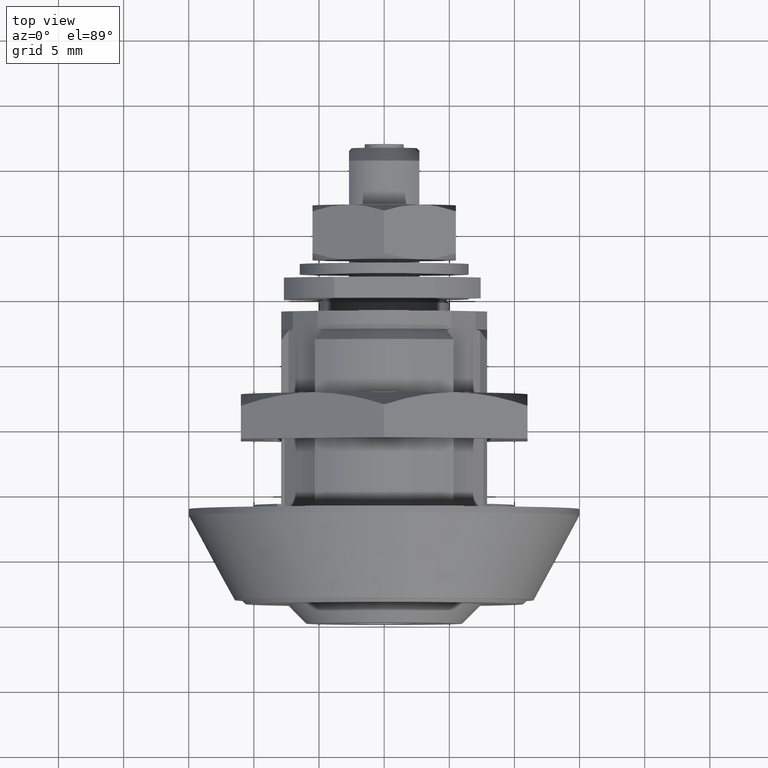
[diagram: clean part render]
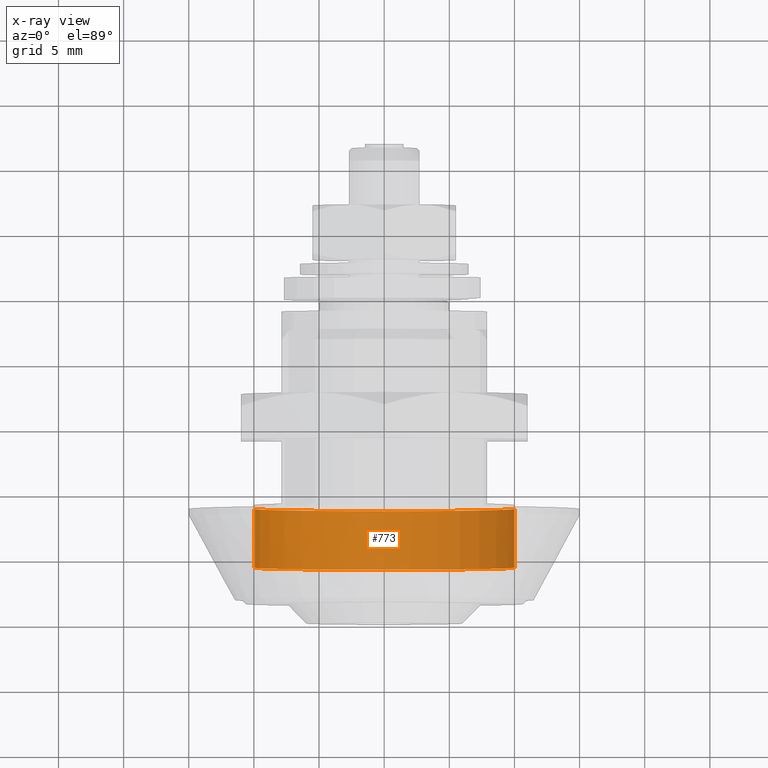
[diagram: x-ray — body ghosted, one internal face saturated and labeled with its STEP entity id]
A machine part, top view, then the same camera in x-ray: the body is ghosted and one INTERNAL B-rep face — a face not visible from any outside direction — is saturated and labeled: STEP entity #773.
In plain terms, the highlighted face is a freeform B-spline surface patch.
Its self-contained STEP definition (entity closure, byte-faithful):
#671=CARTESIAN_POINT('',(8.912500000000003,9.930095263636664,1.180342346567585));
#672=CARTESIAN_POINT('',(8.912500000000003,9.963876154486057,0.896147286379777));
#673=CARTESIAN_POINT('',(8.912500000000003,9.981347984218667,0.610485395348570));
#674=CARTESIAN_POINT('',(8.912500000000003,10.591833379567237,-9.370862588870097));
#675=CARTESIAN_POINT('',(8.912500000000003,0.610485395348570,-9.981347984218667));
#676=CARTESIAN_POINT('',(8.912500000000003,-9.370862588870097,-10.591833379567237));
#677=CARTESIAN_POINT('',(8.912500000000003,-9.981347984218667,-0.610485395348570));
#678=CARTESIAN_POINT('',(4.184687500000000,9.930095263636664,1.180342346567585));
#679=CARTESIAN_POINT('',(4.184687500000000,9.963876154486057,0.896147286379777));
#680=CARTESIAN_POINT('',(4.184687499999999,9.981347984218667,0.610485395348570));
#681=CARTESIAN_POINT('',(4.184687499999999,10.591833379567237,-9.370862588870097));
#682=CARTESIAN_POINT('',(4.184687499999999,0.610485395348570,-9.981347984218667));
#683=CARTESIAN_POINT('',(4.184687499999999,-9.370862588870097,-10.591833379567237));
#684=CARTESIAN_POINT('',(4.184687499999999,-9.981347984218667,-0.610485395348570));
#692=(BOUNDED_SURFACE()B_SPLINE_SURFACE(2,1,((#671,#678),(#672,#679),(#673,#680),(#674,#681),(#675,#682),(#676,#683),(#677,#684)),.UNSPECIFIED.,.F.,.F.,.U.)B_SPLINE_SURFACE_WITH_KNOTS((3,2,2,3),(2,2),(0.0,0.662741699796953,17.231284194720750,33.799826689644547),(0.0,4.727812500000004),.UNSPECIFIED.)GEOMETRIC_REPRESENTATION_ITEM()RATIONAL_B_SPLINE_SURFACE(((0.977505800795127,0.977505800795127),(0.988284271247462,0.988284271247462),(1.0,1.0),(0.707106781186548,0.707106781186548),(1.0,1.0),(0.707106781186548,0.707106781186548),(1.0,1.0)))REPRESENTATION_ITEM('')SURFACE());
#693=CARTESIAN_POINT('',(4.299999999999990,9.930095537948505,1.180340038806508));
#694=VERTEX_POINT('',#693);
#695=CARTESIAN_POINT('',(4.300000000000000,0.0,-10.0));
#696=VERTEX_POINT('',#695);
#697=CARTESIAN_POINT('',(4.299999999999991,9.930095537948505,1.180340038806507));
#698=CARTESIAN_POINT('',(4.300000000000000,10.0,0.592240030439925));
#699=CARTESIAN_POINT('',(4.300000000000000,10.0,0.0));
#700=CARTESIAN_POINT('',(4.300000000000001,10.000000000000002,-10.000000000000002));
#701=CARTESIAN_POINT('',(4.300000000000000,0.0,-10.0));
#709=(BOUNDED_CURVE()B_SPLINE_CURVE(2,(#697,#698,#699,#700,#701),.UNSPECIFIED.,.F.,.U.)B_SPLINE_CURVE_WITH_KNOTS((3,2,3),(0.229562512792118,0.250000000000000,0.500000000000000),.UNSPECIFIED.)CURVE()GEOMETRIC_REPRESENTATION_ITEM()RATIONAL_B_SPLINE_CURVE((0.956026831171396,0.976055994348899,1.0,0.707106781186548,1.0))REPRESENTATION_ITEM(''));
#710=EDGE_CURVE('',#694,#696,#709,.T.);
#711=ORIENTED_EDGE('',*,*,#710,.T.);
#712=CARTESIAN_POINT('',(4.299999999999949,-9.981348360580654,-0.610479241822242));
#713=VERTEX_POINT('',#712);
#714=CARTESIAN_POINT('',(4.300000000000000,0.0,-10.0));
#715=CARTESIAN_POINT('',(4.300000000000002,-9.407066479372562,-10.0));
#716=CARTESIAN_POINT('',(4.299999999999949,-9.981348360580654,-0.610479241822242));
#724=(BOUNDED_CURVE()B_SPLINE_CURVE(2,(#714,#715,#716),.UNSPECIFIED.,.F.,.U.)B_SPLINE_CURVE_WITH_KNOTS((3,3),(0.500000000000000,0.739333068617510),.UNSPECIFIED.)CURVE()GEOMETRIC_REPRESENTATION_ITEM()RATIONAL_B_SPLINE_CURVE((1.0,0.719603868656467,0.976072269656343))REPRESENTATION_ITEM(''));
#725=EDGE_CURVE('',#696,#713,#724,.T.);
#726=ORIENTED_EDGE('',*,*,#725,.T.);
#727=CARTESIAN_POINT('',(8.800000000000001,-9.981348355932868,-0.610479317814390));
#728=VERTEX_POINT('',#727);
#729=CARTESIAN_POINT('',(8.800000000000001,-9.981348355932868,-0.610479317814390));
#730=CARTESIAN_POINT('',(4.299999999999949,-9.981348360580654,-0.610479241822242));
#731=QUASI_UNIFORM_CURVE('',1,(#729,#730),.UNSPECIFIED.,.F.,.U.);
#732=EDGE_CURVE('',#728,#713,#731,.T.);
#733=ORIENTED_EDGE('',*,*,#732,.F.);
#734=CARTESIAN_POINT('',(8.800000000000001,0.0,-10.0));
#735=VERTEX_POINT('',#734);
#736=CARTESIAN_POINT('',(8.800000000000001,0.0,-10.0));
#737=CARTESIAN_POINT('',(8.800000000000003,-9.407066407618837,-10.0));
#738=CARTESIAN_POINT('',(8.800000000000001,-9.981348355932868,-0.610479317814390));
#746=(BOUNDED_CURVE()B_SPLINE_CURVE(2,(#736,#737,#738),.UNSPECIFIED.,.F.,.U.)B_SPLINE_CURVE_WITH_KNOTS((3,3),(0.500000000000000,0.739333067303839),.UNSPECIFIED.)CURVE()GEOMETRIC_REPRESENTATION_ITEM()RATIONAL_B_SPLINE_CURVE((1.0,0.719603870195527,0.976072266840894))REPRESENTATION_ITEM(''));
#747=EDGE_CURVE('',#735,#728,#746,.T.);
#748=ORIENTED_EDGE('',*,*,#747,.F.);
#749=CARTESIAN_POINT('',(8.800000000000001,9.930095534560305,1.180340067311191));
#750=VERTEX_POINT('',#749);
#751=CARTESIAN_POINT('',(8.800000000000001,9.930095534560305,1.180340067311191));
#752=CARTESIAN_POINT('',(8.800000000000003,10.0,0.592240044842940));
#753=CARTESIAN_POINT('',(8.800000000000001,10.0,0.0));
#754=CARTESIAN_POINT('',(8.800000000000001,10.000000000000002,-10.000000000000002));
#755=CARTESIAN_POINT('',(8.800000000000001,0.0,-10.0));
#763=(BOUNDED_CURVE()B_SPLINE_CURVE(2,(#751,#752,#753,#754,#755),.UNSPECIFIED.,.F.,.U.)B_SPLINE_CURVE_WITH_KNOTS((3,2,3),(0.229562512306988,0.250000000000000,0.500000000000000),.UNSPECIFIED.)CURVE()GEOMETRIC_REPRESENTATION_ITEM()RATIONAL_B_SPLINE_CURVE((0.956026830220522,0.976055993780534,1.0,0.707106781186548,1.0))REPRESENTATION_ITEM(''));
#764=EDGE_CURVE('',#750,#735,#763,.T.);
#765=ORIENTED_EDGE('',*,*,#764,.F.);
#766=CARTESIAN_POINT('',(8.800000000000001,9.930095534560305,1.180340067311191));
#767=CARTESIAN_POINT('',(4.299999999999990,9.930095537948505,1.180340038806508));
#768=QUASI_UNIFORM_CURVE('',1,(#766,#767),.UNSPECIFIED.,.F.,.U.);
#769=EDGE_CURVE('',#750,#694,#768,.T.);
#770=ORIENTED_EDGE('',*,*,#769,.T.);
#771=EDGE_LOOP('',(#711,#726,#733,#748,#765,#770));
#772=FACE_OUTER_BOUND('',#771,.T.);
#773=ADVANCED_FACE('',(#772),#692,.F.);